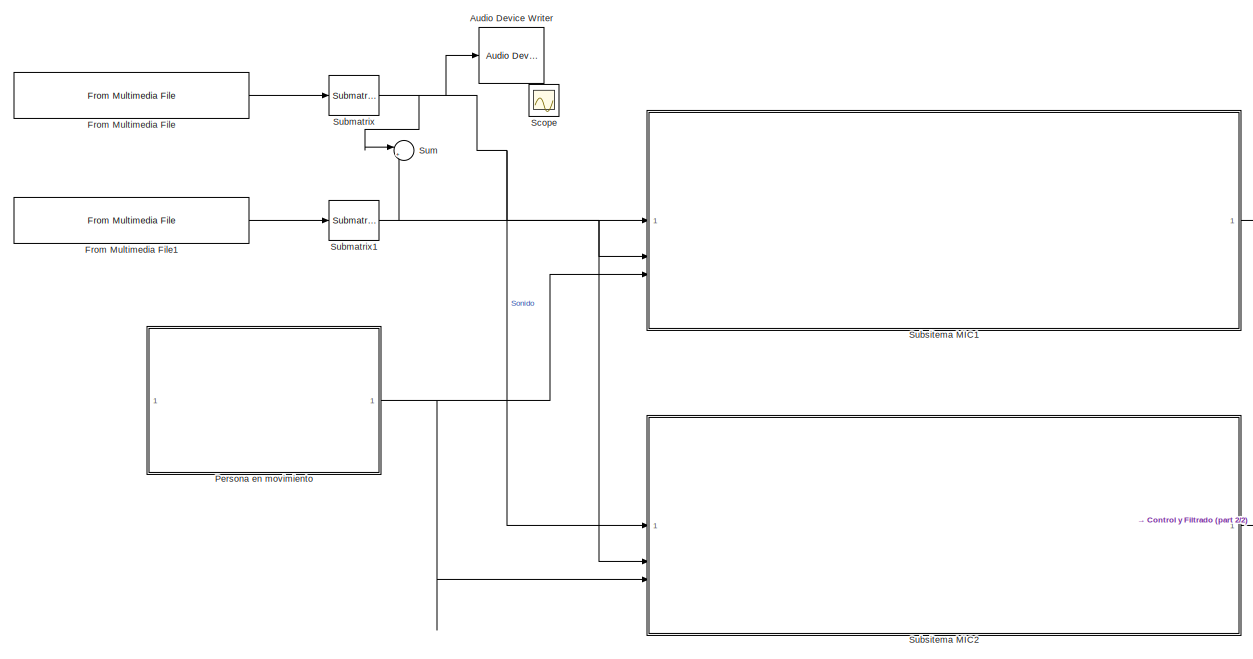
[diagram: root canvas - part 1/2, left side, full height]
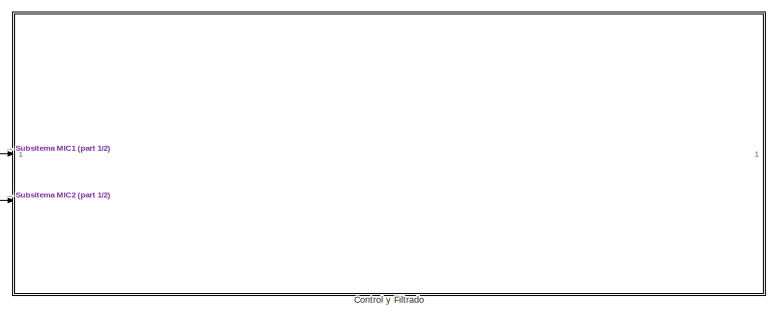
[diagram: root canvas - part 2/2, middle right region]
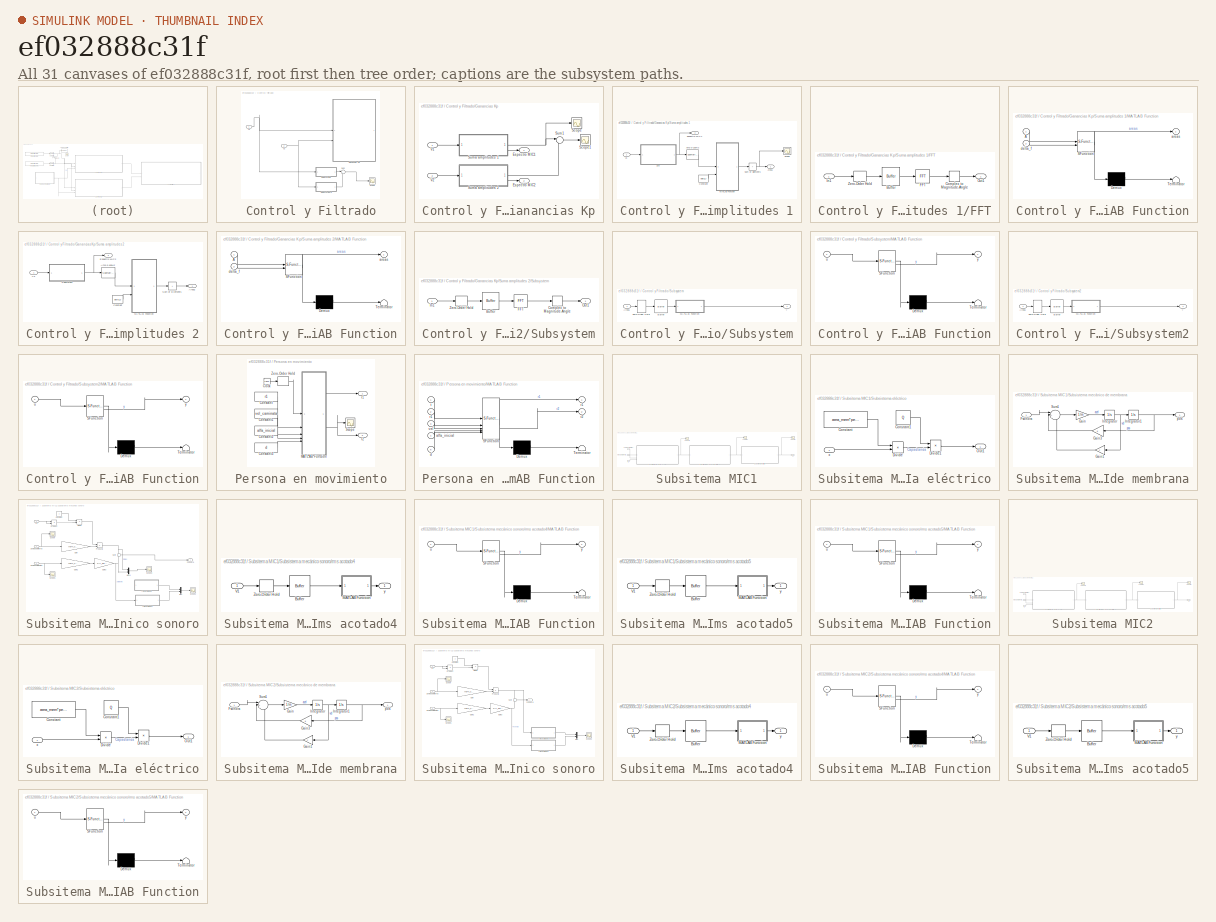
[diagram: thumbnail index - all 31 canvases of the model, root first then tree order]
MODEL slx_ef032888c31f
KIND model
CONFIG AbsTol = auto
CONFIG EnableMultiTasking = off
CONFIG FixedStep = auto
CONFIG MaxStep = auto
CONFIG MinStep = auto
CONFIG RelTol = 1e-3
CONFIG SampleTimeConstraint = Unconstrained
CONFIG SolverName = VariableStepAuto
CONFIG StartTime = 0.0
CONFIG StopTime = 10.0
BLOCK [Reference] Audio Device Writer  REF=dspsnks4/Audio Device
Writer
  LibrarySourceBlock = audiosinks/Audio Device\nWriter
  SourceBlock = dspsnks4/Audio Device\nWriter
  SourceType = Audio Device Writer
BLOCK [SubSystem] Control y Filtrado
BLOCK [SubSystem] Control y Filtrado/Ganancias Kp
BLOCK [Outport] Control y Filtrado/Ganancias Kp/Espectro MIC1
BLOCK [Outport] Control y Filtrado/Ganancias Kp/Espectro MIC2
  Port = 2
BLOCK [Scope] Control y Filtrado/Ganancias Kp/Scope
  Floating = off
  NumInputPorts = 1
  ScopeSpecificationString = Simulink.scopes.TimeScopeBlockCfg('CurrentConfiguration', extmgr.ConfigurationSet(extmgr.Configuration('Core','General UI',true),extmgr.Configuration('Core','Source UI',true),extmgr.Configuration('Sources','WiredSimulink',true,'DataLoggingVariableName','ScopeData1'),extmgr.Configuration('Visuals','Time Domain',true,'SerializedDisplays',{struct('MinYLimReal','-1656.85877','MaxYLimReal','14911.72891...<+1433ch>
BLOCK [Scope] Control y Filtrado/Ganancias Kp/Scope1
  Floating = off
  NumInputPorts = 1
  ScopeSpecificationString = Simulink.scopes.TimeScopeBlockCfg('CurrentConfiguration', extmgr.ConfigurationSet(extmgr.Configuration('Core','General UI',true),extmgr.Configuration('Core','Source UI',true),extmgr.Configuration('Sources','WiredSimulink',true,'DataLoggingVariableName','ScopeData5'),extmgr.Configuration('Visuals','Time Domain',true,'SerializedDisplays',{struct('MinYLimReal','-378.04965','MaxYLimReal','1163.60434',...<+1429ch>
BLOCK [Sum] Control y Filtrado/Ganancias Kp/Sum1
  Inputs = |-+
BLOCK [SubSystem] Control y Filtrado/Ganancias Kp/Suma amplitudes 1
BLOCK [Reference] Control y Filtrado/Ganancias Kp/Suma amplitudes 1/Amp 0-100Hz  REF=matrix_library/Submatrix
  LibrarySourceBlock = simulink/Matrix\nOperations/Submatrix
  SourceBlock = matrix_library/Submatrix
  SourceType = Submatrix
BLOCK [Outport] Control y Filtrado/Ganancias Kp/Suma amplitudes 1/Area1
BLOCK [Constant] Control y Filtrado/Ganancias Kp/Suma amplitudes 1/Constant
  Value = delta_f
BLOCK [Outport] Control y Filtrado/Ganancias Kp/Suma amplitudes 1/Espectro MIC1
  Port = 2
BLOCK [SubSystem] Control y Filtrado/Ganancias Kp/Suma amplitudes 1/FFT
BLOCK [Buffer] Control y Filtrado/Ganancias Kp/Suma amplitudes 1/FFT/Buffer
  N = ventana_fft
  OutputFrames = off
  V = ventana_fft_analisis-1
BLOCK [ComplexToMagnitudeAngle] Control y Filtrado/Ganancias Kp/Suma amplitudes 1/FFT/Complex to Magnitude-Angle
  Output = Magnitude
BLOCK [Reference] Control y Filtrado/Ganancias Kp/Suma amplitudes 1/FFT/FFT  REF=dspxfrm3/FFT
  SourceBlock = dspxfrm3/FFT
  SourceType = FFT
BLOCK [Inport] Control y Filtrado/Ganancias Kp/Suma amplitudes 1/FFT/In1
BLOCK [Outport] Control y Filtrado/Ganancias Kp/Suma amplitudes 1/FFT/Out1
BLOCK [ZeroOrderHold] Control y Filtrado/Ganancias Kp/Suma amplitudes 1/FFT/Zero-Order Hold
  SampleTime = zoh_freq
BLOCK [SubSystem] Control y Filtrado/Ganancias Kp/Suma amplitudes 1/MATLAB Function
  ErrorFcn = Stateflow.Translate.translate
  LibrarySourceBlock = simulink/User-Defined\nFunctions/MATLAB Function
  PermitHierarchicalResolution = ExplicitOnly
  SFBlockType = MATLAB Function
  TreatAsAtomicUnit = on
BLOCK [Demux] Control y Filtrado/Ganancias Kp/Suma amplitudes 1/MATLAB Function/ Demux 
  Outputs = 1
BLOCK [S-Function] Control y Filtrado/Ganancias Kp/Suma amplitudes 1/MATLAB Function/ SFunction 
  EnableBusSupport = on
  FunctionName = sf_sfun
  PortCounts = [2 2]
  SFcnIsStateOwnerBlock = off
  SFunctionDeploymentMode = off
  Tag = Stateflow S-Function 3
BLOCK [Terminator] Control y Filtrado/Ganancias Kp/Suma amplitudes 1/MATLAB Function/ Terminator 
BLOCK [Inport] Control y Filtrado/Ganancias Kp/Suma amplitudes 1/MATLAB Function/A
BLOCK [Outport] Control y Filtrado/Ganancias Kp/Suma amplitudes 1/MATLAB Function/areas
BLOCK [Inport] Control y Filtrado/Ganancias Kp/Suma amplitudes 1/MATLAB Function/delta_f
  Port = 2
BLOCK [Scope] Control y Filtrado/Ganancias Kp/Suma amplitudes 1/Scope
  Floating = off
  NumInputPorts = 1
  ScopeSpecificationString = Simulink.scopes.TimeScopeBlockCfg('CurrentConfiguration', extmgr.ConfigurationSet(extmgr.Configuration('Core','General UI',true),extmgr.Configuration('Core','Source UI',true),extmgr.Configuration('Sources','WiredSimulink',true,'DataLoggingVariableName','ScopeData6'),extmgr.Configuration('Visuals','Time Domain',true),extmgr.Configuration('Tools','Plot Navigation',true),extmgr.Configuration('Tools',...<+40ch>
BLOCK [Sum] Control y Filtrado/Ganancias Kp/Suma amplitudes 1/Sum of Elements
  IconShape = rectangular
  Inputs = +
BLOCK [Inport] Control y Filtrado/Ganancias Kp/Suma amplitudes 1/V1
BLOCK [SubSystem] Control y Filtrado/Ganancias Kp/Suma amplitudes 2
BLOCK [Reference] Control y Filtrado/Ganancias Kp/Suma amplitudes 2/Amp 0-100Hz  REF=matrix_library/Submatrix
  LibrarySourceBlock = simulink/Matrix\nOperations/Submatrix
  SourceBlock = matrix_library/Submatrix
  SourceType = Submatrix
BLOCK [Outport] Control y Filtrado/Ganancias Kp/Suma amplitudes 2/Area2
BLOCK [Constant] Control y Filtrado/Ganancias Kp/Suma amplitudes 2/Constant
  Value = delta_f
BLOCK [Outport] Control y Filtrado/Ganancias Kp/Suma amplitudes 2/Espectro MIC2
  Port = 2
BLOCK [SubSystem] Control y Filtrado/Ganancias Kp/Suma amplitudes 2/MATLAB Function
  ErrorFcn = Stateflow.Translate.translate
  LibrarySourceBlock = simulink/User-Defined\nFunctions/MATLAB Function
  PermitHierarchicalResolution = ExplicitOnly
  SFBlockType = MATLAB Function
  TreatAsAtomicUnit = on
BLOCK [Demux] Control y Filtrado/Ganancias Kp/Suma amplitudes 2/MATLAB Function/ Demux 
  Outputs = 1
BLOCK [S-Function] Control y Filtrado/Ganancias Kp/Suma amplitudes 2/MATLAB Function/ SFunction 
  EnableBusSupport = on
  FunctionName = sf_sfun
  PortCounts = [2 2]
  SFcnIsStateOwnerBlock = off
  SFunctionDeploymentMode = off
  Tag = Stateflow S-Function 2
BLOCK [Terminator] Control y Filtrado/Ganancias Kp/Suma amplitudes 2/MATLAB Function/ Terminator 
BLOCK [Inport] Control y Filtrado/Ganancias Kp/Suma amplitudes 2/MATLAB Function/A
BLOCK [Outport] Control y Filtrado/Ganancias Kp/Suma amplitudes 2/MATLAB Function/areas
BLOCK [Inport] Control y Filtrado/Ganancias Kp/Suma amplitudes 2/MATLAB Function/delta_f
  Port = 2
BLOCK [SubSystem] Control y Filtrado/Ganancias Kp/Suma amplitudes 2/Subsystem
BLOCK [Buffer] Control y Filtrado/Ganancias Kp/Suma amplitudes 2/Subsystem/Buffer
  N = ventana_fft
  OutputFrames = off
  V = ventana_fft_analisis-1
BLOCK [ComplexToMagnitudeAngle] Control y Filtrado/Ganancias Kp/Suma amplitudes 2/Subsystem/Complex to Magnitude-Angle
  Output = Magnitude
BLOCK [Reference] Control y Filtrado/Ganancias Kp/Suma amplitudes 2/Subsystem/FFT  REF=dspxfrm3/FFT
  SourceBlock = dspxfrm3/FFT
  SourceType = FFT
BLOCK [Inport] Control y Filtrado/Ganancias Kp/Suma amplitudes 2/Subsystem/In1
BLOCK [Outport] Control y Filtrado/Ganancias Kp/Suma amplitudes 2/Subsystem/Out1
BLOCK [ZeroOrderHold] Control y Filtrado/Ganancias Kp/Suma amplitudes 2/Subsystem/Zero-Order Hold
  SampleTime = zoh_freq
BLOCK [Sum] Control y Filtrado/Ganancias Kp/Suma amplitudes 2/Sum of Elements
  IconShape = rectangular
  Inputs = +
BLOCK [Inport] Control y Filtrado/Ganancias Kp/Suma amplitudes 2/V2
BLOCK [Inport] Control y Filtrado/Ganancias Kp/V1
BLOCK [Inport] Control y Filtrado/Ganancias Kp/V2
  Port = 2
BLOCK [Scope] Control y Filtrado/Scope
  Floating = off
  NumInputPorts = 1
  ScopeSpecificationString = Simulink.scopes.TimeScopeBlockCfg('CurrentConfiguration', extmgr.ConfigurationSet(extmgr.Configuration('Core','General UI',true),extmgr.Configuration('Core','Source UI',true),extmgr.Configuration('Sources','WiredSimulink',true,'DataLoggingVariableName','ScopeData2'),extmgr.Configuration('Visuals','Time Domain',true,'SerializedDisplays',{struct('MinYLimReal','-1.00000','MaxYLimReal','1.00000','YLab...<+1391ch>
BLOCK [SubSystem] Control y Filtrado/Subsystem
BLOCK [Inport] Control y Filtrado/Subsystem/Area1
BLOCK [Buffer] Control y Filtrado/Subsystem/Buffer
  N = 3
  OutputFrames = off
BLOCK [SubSystem] Control y Filtrado/Subsystem/MATLAB Function
  ErrorFcn = Stateflow.Translate.translate
  LibrarySourceBlock = simulink/User-Defined\nFunctions/MATLAB Function
  PermitHierarchicalResolution = ExplicitOnly
  SFBlockType = MATLAB Function
  TreatAsAtomicUnit = on
BLOCK [Demux] Control y Filtrado/Subsystem/MATLAB Function/ Demux 
  Outputs = 1
BLOCK [S-Function] Control y Filtrado/Subsystem/MATLAB Function/ SFunction 
  EnableBusSupport = on
  FunctionName = sf_sfun
  PortCounts = [1 2]
  SFcnIsStateOwnerBlock = off
  SFunctionDeploymentMode = off
  Tag = Stateflow S-Function 10
BLOCK [Terminator] Control y Filtrado/Subsystem/MATLAB Function/ Terminator 
BLOCK [Inport] Control y Filtrado/Subsystem/MATLAB Function/u
BLOCK [Outport] Control y Filtrado/Subsystem/MATLAB Function/y
BLOCK [ZeroOrderHold] Control y Filtrado/Subsystem/Zero-Order Hold
  SampleTime = 1/fs
BLOCK [Outport] Control y Filtrado/Subsystem/y
BLOCK [SubSystem] Control y Filtrado/Subsystem2
BLOCK [Inport] Control y Filtrado/Subsystem2/Area1
BLOCK [Buffer] Control y Filtrado/Subsystem2/Buffer
  N = 3
  OutputFrames = off
BLOCK [SubSystem] Control y Filtrado/Subsystem2/MATLAB Function
  ErrorFcn = Stateflow.Translate.translate
  LibrarySourceBlock = simulink/User-Defined\nFunctions/MATLAB Function
  PermitHierarchicalResolution = ExplicitOnly
  SFBlockType = MATLAB Function
  TreatAsAtomicUnit = on
BLOCK [Demux] Control y Filtrado/Subsystem2/MATLAB Function/ Demux 
  Outputs = 1
BLOCK [S-Function] Control y Filtrado/Subsystem2/MATLAB Function/ SFunction 
  EnableBusSupport = on
  FunctionName = sf_sfun
  PortCounts = [1 2]
  SFcnIsStateOwnerBlock = off
  SFunctionDeploymentMode = off
  Tag = Stateflow S-Function 12
BLOCK [Terminator] Control y Filtrado/Subsystem2/MATLAB Function/ Terminator 
BLOCK [Inport] Control y Filtrado/Subsystem2/MATLAB Function/u
BLOCK [Outport] Control y Filtrado/Subsystem2/MATLAB Function/y
BLOCK [ZeroOrderHold] Control y Filtrado/Subsystem2/Zero-Order Hold
  SampleTime = 1/fs
BLOCK [Outport] Control y Filtrado/Subsystem2/y
BLOCK [Sum] Control y Filtrado/Sum
  Inputs = |+-
BLOCK [Inport] Control y Filtrado/V1
BLOCK [Inport] Control y Filtrado/V2
  Port = 2
BLOCK [Reference] From Multimedia File  REF=dspvision/From Multimedia File
  LibrarySourceBlock = audiosources/From Multimedia File
  SourceBlock = dspvision/From Multimedia File
  SourceType = From Multimedia File
BLOCK [Reference] From Multimedia File1  REF=dspvision/From Multimedia File
  LibrarySourceBlock = audiosources/From Multimedia File
  SourceBlock = dspvision/From Multimedia File
  SourceType = From Multimedia File
BLOCK [SubSystem] Persona en movimiento
BLOCK [Clock] Persona en movimiento/Clock
  Decimation = 1
BLOCK [Constant] Persona en movimiento/Constant
  Value = r1
BLOCK [Constant] Persona en movimiento/Constant1
  Value = vel_caminata
BLOCK [Constant] Persona en movimiento/Constant2
  Value = alfa_inicial
BLOCK [Constant] Persona en movimiento/Constant3
  Value = d
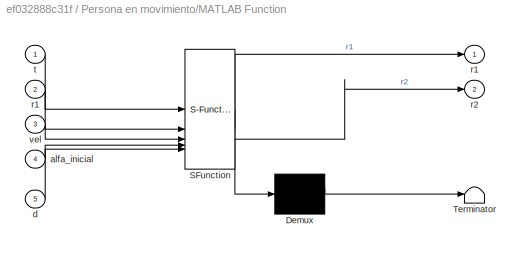
BLOCK [SubSystem] Persona en movimiento/MATLAB Function
  ErrorFcn = Stateflow.Translate.translate
  LibrarySourceBlock = simulink/User-Defined\nFunctions/MATLAB Function
  PermitHierarchicalResolution = ExplicitOnly
  SFBlockType = MATLAB Function
  TreatAsAtomicUnit = on
BLOCK [Demux] Persona en movimiento/MATLAB Function/ Demux 
  Outputs = 1
BLOCK [S-Function] Persona en movimiento/MATLAB Function/ SFunction 
  EnableBusSupport = on
  FunctionName = sf_sfun
  PortCounts = [5 3]
  SFcnIsStateOwnerBlock = off
  SFunctionDeploymentMode = off
  Tag = Stateflow S-Function 5
BLOCK [Terminator] Persona en movimiento/MATLAB Function/ Terminator 
BLOCK [Inport] Persona en movimiento/MATLAB Function/alfa_inicial
  Port = 4
BLOCK [Inport] Persona en movimiento/MATLAB Function/d
  Port = 5
BLOCK [Outport] Persona en movimiento/MATLAB Function/r1
BLOCK [Inport] Persona en movimiento/MATLAB Function/r1 
  Port = 2
BLOCK [Outport] Persona en movimiento/MATLAB Function/r2
  Port = 2
BLOCK [Inport] Persona en movimiento/MATLAB Function/t
BLOCK [Inport] Persona en movimiento/MATLAB Function/vel
  Port = 3
BLOCK [Scope] Persona en movimiento/Scope
  Floating = off
  NumInputPorts = 1
  ScopeSpecificationString = Simulink.scopes.TimeScopeBlockCfg('CurrentConfiguration', extmgr.ConfigurationSet(extmgr.Configuration('Core','General UI',true),extmgr.Configuration('Core','Source UI',true),extmgr.Configuration('Sources','WiredSimulink',true,'DataLoggingVariableName','ScopeData3'),extmgr.Configuration('Visuals','Time Domain',true,'SerializedDisplays',{struct('MinYLimReal','0.41007','MaxYLimReal','0.60999','YLabe...<+1408ch>
BLOCK [ZeroOrderHold] Persona en movimiento/Zero-Order Hold
  SampleTime = 0.1
BLOCK [Outport] Persona en movimiento/r1
BLOCK [Outport] Persona en movimiento/r2
  Port = 2
BLOCK [Scope] Scope
  Floating = off
  NumInputPorts = 1
  ScopeSpecificationString = Simulink.scopes.TimeScopeBlockCfg('CurrentConfiguration', extmgr.ConfigurationSet(extmgr.Configuration('Core','General UI',true),extmgr.Configuration('Core','Source UI',true),extmgr.Configuration('Sources','WiredSimulink',true,'DataLoggingVariableName','ScopeData4'),extmgr.Configuration('Visuals','Time Domain',true,'SerializedDisplays',{struct('MinYLimReal','-1.00000','MaxYLimReal','1.00000','YLab...<+1403ch>
BLOCK [Reference] Submatrix  REF=matrix_library/Submatrix
  LibrarySourceBlock = simulink/Matrix\nOperations/Submatrix
  SourceBlock = matrix_library/Submatrix
  SourceType = Submatrix
BLOCK [Reference] Submatrix1  REF=matrix_library/Submatrix
  LibrarySourceBlock = simulink/Matrix\nOperations/Submatrix
  SourceBlock = matrix_library/Submatrix
  SourceType = Submatrix
BLOCK [SubSystem] Subsitema MIC1
BLOCK [Scope] Subsitema MIC1/Fsonora
  Floating = off
  NumInputPorts = 1
  ScopeSpecificationString = Simulink.scopes.TimeScopeBlockCfg('CurrentConfiguration', extmgr.ConfigurationSet(extmgr.Configuration('Core','General UI',true),extmgr.Configuration('Core','Source UI',true),extmgr.Configuration('Sources','WiredSimulink',true),extmgr.Configuration('Visuals','Time Domain',true,'SerializedDisplays',{struct('MinYLimReal','-0.00023','MaxYLimReal','0.0003','YLabelReal','','MinYLimMag','0.00000','MaxYL...<+1397ch>
BLOCK [Scope] Subsitema MIC1/Posición
  Floating = off
  NumInputPorts = 1
  ScopeSpecificationString = Simulink.scopes.TimeScopeBlockCfg('CurrentConfiguration', extmgr.ConfigurationSet(extmgr.Configuration('Core','General UI',true),extmgr.Configuration('Core','Source UI',true),extmgr.Configuration('Sources','WiredSimulink',true,'DataLoggingVariableName','ScopeData3'),extmgr.Configuration('Visuals','Time Domain',true,'SerializedDisplays',{struct('MinYLimReal','-0.000011','MaxYLimReal','0.000011','YL...<+1398ch>
BLOCK [Inport] Subsitema MIC1/Sonido ambiente 1
  Port = 2
BLOCK [Inport] Subsitema MIC1/Sonido de interes
BLOCK [SubSystem] Subsitema MIC1/Subsistema eléctrico
BLOCK [Constant] Subsitema MIC1/Subsistema eléctrico/Constant
  Value = area_mem*perm
BLOCK [Constant] Subsitema MIC1/Subsistema eléctrico/Constant1
  Value = Q
BLOCK [Product] Subsitema MIC1/Subsistema eléctrico/Divide
  Inputs = */
BLOCK [Product] Subsitema MIC1/Subsistema eléctrico/Divide1
  Inputs = */
BLOCK [Outport] Subsitema MIC1/Subsistema eléctrico/Out1
BLOCK [Inport] Subsitema MIC1/Subsistema eléctrico/x
BLOCK [SubSystem] Subsitema MIC1/Subsistema mecánico de membrana
BLOCK [Inport] Subsitema MIC1/Subsistema mecánico de membrana/Fsonora
BLOCK [Gain] Subsitema MIC1/Subsistema mecánico de membrana/Gain
  Gain = 1/m
BLOCK [Gain] Subsitema MIC1/Subsistema mecánico de membrana/Gain1
  Gain = c
BLOCK [Gain] Subsitema MIC1/Subsistema mecánico de membrana/Gain3
  Gain = k
BLOCK [Integrator] Subsitema MIC1/Subsistema mecánico de membrana/Integrator
BLOCK [Integrator] Subsitema MIC1/Subsistema mecánico de membrana/Integrator1
BLOCK [Sum] Subsitema MIC1/Subsistema mecánico de membrana/Sum1
  Inputs = |+--
BLOCK [Outport] Subsitema MIC1/Subsistema mecánico de membrana/pos
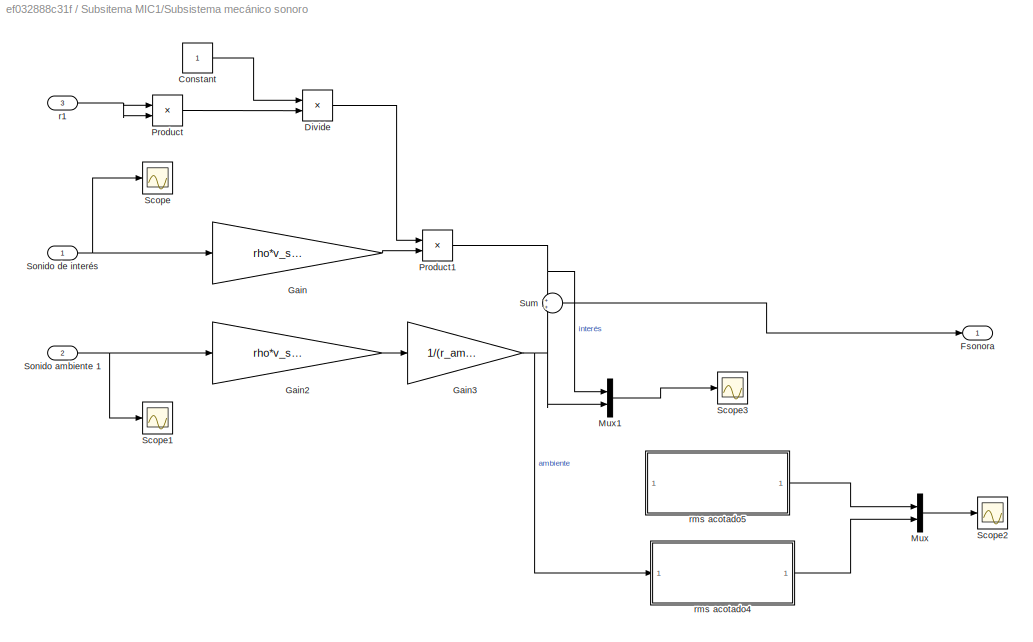
BLOCK [SubSystem] Subsitema MIC1/Subsistema mecánico sonoro
BLOCK [Constant] Subsitema MIC1/Subsistema mecánico sonoro/Constant
BLOCK [Product] Subsitema MIC1/Subsistema mecánico sonoro/Divide
  Inputs = */
BLOCK [Outport] Subsitema MIC1/Subsistema mecánico sonoro/Fsonora
BLOCK [Gain] Subsitema MIC1/Subsistema mecánico sonoro/Gain
  Gain = rho*v_sonido*(area_mem)
BLOCK [Gain] Subsitema MIC1/Subsistema mecánico sonoro/Gain2
  Gain = rho*v_sonido*(area_mem)
BLOCK [Gain] Subsitema MIC1/Subsistema mecánico sonoro/Gain3
  Gain = 1/(r_ambiente1^2)
BLOCK [Mux] Subsitema MIC1/Subsistema mecánico sonoro/Mux
  DisplayOption = bar
  Inputs = 2
BLOCK [Mux] Subsitema MIC1/Subsistema mecánico sonoro/Mux1
  DisplayOption = bar
  Inputs = 2
BLOCK [Product] Subsitema MIC1/Subsistema mecánico sonoro/Product
BLOCK [Product] Subsitema MIC1/Subsistema mecánico sonoro/Product1
BLOCK [Scope] Subsitema MIC1/Subsistema mecánico sonoro/Scope
  Floating = off
  NumInputPorts = 1
  ScopeSpecificationString = Simulink.scopes.TimeScopeBlockCfg('CurrentConfiguration', extmgr.ConfigurationSet(extmgr.Configuration('Core','General UI',true),extmgr.Configuration('Core','Source UI',true),extmgr.Configuration('Sources','WiredSimulink',true,'DataLoggingVariableName','ScopeData1'),extmgr.Configuration('Visuals','Time Domain',true,'SerializedDisplays',{struct('MinYLimReal','-0.27585','MaxYLimReal','0.3576','YLabe...<+1372ch>
BLOCK [Scope] Subsitema MIC1/Subsistema mecánico sonoro/Scope1
  Floating = off
  NumInputPorts = 1
  ScopeSpecificationString = Simulink.scopes.TimeScopeBlockCfg('CurrentConfiguration', extmgr.ConfigurationSet(extmgr.Configuration('Core','General UI',true),extmgr.Configuration('Core','Source UI',true),extmgr.Configuration('Sources','WiredSimulink',true,'DataLoggingVariableName','ScopeData2'),extmgr.Configuration('Visuals','Time Domain',true,'SerializedDisplays',{struct('MinYLimReal','-0.16318','MaxYLimReal','0.17554','YLab...<+1376ch>
BLOCK [Scope] Subsitema MIC1/Subsistema mecánico sonoro/Scope2
  Floating = off
  NumInputPorts = 1
  ScopeSpecificationString = Simulink.scopes.TimeScopeBlockCfg('CurrentConfiguration', extmgr.ConfigurationSet(extmgr.Configuration('Core','General UI',true),extmgr.Configuration('Core','Source UI',true),extmgr.Configuration('Sources','WiredSimulink',true,'DataLoggingVariableName','ScopeData2'),extmgr.Configuration('Visuals','Time Domain',true,'SerializedDisplays',{struct('MinYLimReal','-0.00006','MaxYLimReal','0.00056','YLab...<+1416ch>
BLOCK [Scope] Subsitema MIC1/Subsistema mecánico sonoro/Scope3
  Floating = off
  NumInputPorts = 1
  ScopeSpecificationString = Simulink.scopes.TimeScopeBlockCfg('CurrentConfiguration', extmgr.ConfigurationSet(extmgr.Configuration('Core','General UI',true),extmgr.Configuration('Core','Source UI',true),extmgr.Configuration('Sources','WiredSimulink',true,'DataLoggingVariableName','ScopeData1'),extmgr.Configuration('Visuals','Time Domain',true,'SerializedDisplays',{struct('MinYLimReal','-0.01473','MaxYLimReal','0.01257','YLab...<+1469ch>
BLOCK [Inport] Subsitema MIC1/Subsistema mecánico sonoro/Sonido ambiente 1
  Port = 2
BLOCK [Inport] Subsitema MIC1/Subsistema mecánico sonoro/Sonido de interés
BLOCK [Sum] Subsitema MIC1/Subsistema mecánico sonoro/Sum
BLOCK [Inport] Subsitema MIC1/Subsistema mecánico sonoro/r1
  Port = 3
BLOCK [SubSystem] Subsitema MIC1/Subsistema mecánico sonoro/rms acotado4
BLOCK [Buffer] Subsitema MIC1/Subsistema mecánico sonoro/rms acotado4/Buffer
  N = 20
  OutputFrames = off
BLOCK [SubSystem] Subsitema MIC1/Subsistema mecánico sonoro/rms acotado4/MATLAB Function
  ErrorFcn = Stateflow.Translate.translate
  LibrarySourceBlock = simulink/User-Defined\nFunctions/MATLAB Function
  PermitHierarchicalResolution = ExplicitOnly
  SFBlockType = MATLAB Function
  TreatAsAtomicUnit = on
BLOCK [Demux] Subsitema MIC1/Subsistema mecánico sonoro/rms acotado4/MATLAB Function/ Demux 
  Outputs = 1
BLOCK [S-Function] Subsitema MIC1/Subsistema mecánico sonoro/rms acotado4/MATLAB Function/ SFunction 
  EnableBusSupport = on
  FunctionName = sf_sfun
  PortCounts = [1 2]
  SFcnIsStateOwnerBlock = off
  SFunctionDeploymentMode = off
  Tag = Stateflow S-Function 7
BLOCK [Terminator] Subsitema MIC1/Subsistema mecánico sonoro/rms acotado4/MATLAB Function/ Terminator 
BLOCK [Inport] Subsitema MIC1/Subsistema mecánico sonoro/rms acotado4/MATLAB Function/u
BLOCK [Outport] Subsitema MIC1/Subsistema mecánico sonoro/rms acotado4/MATLAB Function/y
BLOCK [Inport] Subsitema MIC1/Subsistema mecánico sonoro/rms acotado4/V1
BLOCK [ZeroOrderHold] Subsitema MIC1/Subsistema mecánico sonoro/rms acotado4/Zero-Order Hold
  SampleTime = zoh_freq
BLOCK [Outport] Subsitema MIC1/Subsistema mecánico sonoro/rms acotado4/y
BLOCK [SubSystem] Subsitema MIC1/Subsistema mecánico sonoro/rms acotado5
BLOCK [Buffer] Subsitema MIC1/Subsistema mecánico sonoro/rms acotado5/Buffer
  N = 20
  OutputFrames = off
BLOCK [SubSystem] Subsitema MIC1/Subsistema mecánico sonoro/rms acotado5/MATLAB Function
  ErrorFcn = Stateflow.Translate.translate
  LibrarySourceBlock = simulink/User-Defined\nFunctions/MATLAB Function
  PermitHierarchicalResolution = ExplicitOnly
  SFBlockType = MATLAB Function
  TreatAsAtomicUnit = on
BLOCK [Demux] Subsitema MIC1/Subsistema mecánico sonoro/rms acotado5/MATLAB Function/ Demux 
  Outputs = 1
BLOCK [S-Function] Subsitema MIC1/Subsistema mecánico sonoro/rms acotado5/MATLAB Function/ SFunction 
  EnableBusSupport = on
  FunctionName = sf_sfun
  PortCounts = [1 2]
  SFcnIsStateOwnerBlock = off
  SFunctionDeploymentMode = off
  Tag = Stateflow S-Function 8
BLOCK [Terminator] Subsitema MIC1/Subsistema mecánico sonoro/rms acotado5/MATLAB Function/ Terminator 
BLOCK [Inport] Subsitema MIC1/Subsistema mecánico sonoro/rms acotado5/MATLAB Function/u
BLOCK [Outport] Subsitema MIC1/Subsistema mecánico sonoro/rms acotado5/MATLAB Function/y
BLOCK [Inport] Subsitema MIC1/Subsistema mecánico sonoro/rms acotado5/V1
BLOCK [ZeroOrderHold] Subsitema MIC1/Subsistema mecánico sonoro/rms acotado5/Zero-Order Hold
  SampleTime = zoh_freq
BLOCK [Outport] Subsitema MIC1/Subsistema mecánico sonoro/rms acotado5/y
BLOCK [Scope] Subsitema MIC1/Tensión
  Floating = off
  NumInputPorts = 1
  ScopeSpecificationString = Simulink.scopes.TimeScopeBlockCfg('CurrentConfiguration', extmgr.ConfigurationSet(extmgr.Configuration('Core','General UI',true),extmgr.Configuration('Core','Source UI',true),extmgr.Configuration('Sources','WiredSimulink',true,'DataLoggingVariableName','ScopeData1'),extmgr.Configuration('Visuals','Time Domain',true,'SerializedDisplays',{struct('MinYLimReal','-2.47683','MaxYLimReal','2.43758','YLab...<+1379ch>
BLOCK [Outport] Subsitema MIC1/V1
BLOCK [Inport] Subsitema MIC1/r1
  Port = 3
BLOCK [SubSystem] Subsitema MIC2
BLOCK [Scope] Subsitema MIC2/Fsonora
  Floating = off
  NumInputPorts = 1
  ScopeSpecificationString = Simulink.scopes.TimeScopeBlockCfg('CurrentConfiguration', extmgr.ConfigurationSet(extmgr.Configuration('Core','General UI',true),extmgr.Configuration('Core','Source UI',true),extmgr.Configuration('Sources','WiredSimulink',true),extmgr.Configuration('Visuals','Time Domain',true,'SerializedDisplays',{struct('MinYLimReal','-0.00023','MaxYLimReal','0.0003','YLabelReal','','MinYLimMag','0.00000','MaxYL...<+1397ch>
BLOCK [Scope] Subsitema MIC2/Posición
  Floating = off
  NumInputPorts = 1
  ScopeSpecificationString = Simulink.scopes.TimeScopeBlockCfg('CurrentConfiguration', extmgr.ConfigurationSet(extmgr.Configuration('Core','General UI',true),extmgr.Configuration('Core','Source UI',true),extmgr.Configuration('Sources','WiredSimulink',true,'DataLoggingVariableName','ScopeData3'),extmgr.Configuration('Visuals','Time Domain',true,'SerializedDisplays',{struct('MinYLimReal','-0.000011','MaxYLimReal','0.000011','YL...<+1398ch>
BLOCK [Inport] Subsitema MIC2/Sonido ambiente 1
  Port = 2
BLOCK [Inport] Subsitema MIC2/Sonido de interes
BLOCK [SubSystem] Subsitema MIC2/Subsistema eléctrico
BLOCK [Constant] Subsitema MIC2/Subsistema eléctrico/Constant
  Value = area_mem*perm
BLOCK [Constant] Subsitema MIC2/Subsistema eléctrico/Constant1
  Value = Q
BLOCK [Product] Subsitema MIC2/Subsistema eléctrico/Divide
  Inputs = */
BLOCK [Product] Subsitema MIC2/Subsistema eléctrico/Divide1
  Inputs = */
BLOCK [Outport] Subsitema MIC2/Subsistema eléctrico/Out1
BLOCK [Inport] Subsitema MIC2/Subsistema eléctrico/x
BLOCK [SubSystem] Subsitema MIC2/Subsistema mecánico de membrana
BLOCK [Inport] Subsitema MIC2/Subsistema mecánico de membrana/Fsonora
BLOCK [Gain] Subsitema MIC2/Subsistema mecánico de membrana/Gain
  Gain = 1/m
BLOCK [Gain] Subsitema MIC2/Subsistema mecánico de membrana/Gain1
  Gain = c
BLOCK [Gain] Subsitema MIC2/Subsistema mecánico de membrana/Gain3
  Gain = k
BLOCK [Integrator] Subsitema MIC2/Subsistema mecánico de membrana/Integrator
BLOCK [Integrator] Subsitema MIC2/Subsistema mecánico de membrana/Integrator1
BLOCK [Sum] Subsitema MIC2/Subsistema mecánico de membrana/Sum1
  Inputs = |+--
BLOCK [Outport] Subsitema MIC2/Subsistema mecánico de membrana/pos
BLOCK [SubSystem] Subsitema MIC2/Subsistema mecánico sonoro
BLOCK [Constant] Subsitema MIC2/Subsistema mecánico sonoro/Constant
BLOCK [Product] Subsitema MIC2/Subsistema mecánico sonoro/Divide
  Inputs = */
BLOCK [Outport] Subsitema MIC2/Subsistema mecánico sonoro/Fsonora
BLOCK [Gain] Subsitema MIC2/Subsistema mecánico sonoro/Gain
  Gain = rho*v_sonido*(area_mem)
BLOCK [Gain] Subsitema MIC2/Subsistema mecánico sonoro/Gain2
  Gain = rho*v_sonido*(area_mem)
BLOCK [Gain] Subsitema MIC2/Subsistema mecánico sonoro/Gain3
  Gain = 1/(r_ambiente2^2)
BLOCK [Mux] Subsitema MIC2/Subsistema mecánico sonoro/Mux
  DisplayOption = bar
  Inputs = 2
BLOCK [Product] Subsitema MIC2/Subsistema mecánico sonoro/Product
BLOCK [Product] Subsitema MIC2/Subsistema mecánico sonoro/Product1
BLOCK [Scope] Subsitema MIC2/Subsistema mecánico sonoro/Scope
  Floating = off
  NumInputPorts = 1
  ScopeSpecificationString = Simulink.scopes.TimeScopeBlockCfg('CurrentConfiguration', extmgr.ConfigurationSet(extmgr.Configuration('Core','General UI',true),extmgr.Configuration('Core','Source UI',true),extmgr.Configuration('Sources','WiredSimulink',true,'DataLoggingVariableName','ScopeData1'),extmgr.Configuration('Visuals','Time Domain',true,'SerializedDisplays',{struct('MinYLimReal','-0.27585','MaxYLimReal','0.3576','YLabe...<+1372ch>
BLOCK [Scope] Subsitema MIC2/Subsistema mecánico sonoro/Scope1
  Floating = off
  NumInputPorts = 1
  ScopeSpecificationString = Simulink.scopes.TimeScopeBlockCfg('CurrentConfiguration', extmgr.ConfigurationSet(extmgr.Configuration('Core','General UI',true),extmgr.Configuration('Core','Source UI',true),extmgr.Configuration('Sources','WiredSimulink',true,'DataLoggingVariableName','ScopeData2'),extmgr.Configuration('Visuals','Time Domain',true),extmgr.Configuration('Tools','Plot Navigation',true),extmgr.Configuration('Tools',...<+40ch>
BLOCK [Scope] Subsitema MIC2/Subsistema mecánico sonoro/Scope2
  Floating = off
  NumInputPorts = 1
  ScopeSpecificationString = Simulink.scopes.TimeScopeBlockCfg('CurrentConfiguration', extmgr.ConfigurationSet(extmgr.Configuration('Core','General UI',true),extmgr.Configuration('Core','Source UI',true),extmgr.Configuration('Sources','WiredSimulink',true,'DataLoggingVariableName','ScopeData2'),extmgr.Configuration('Visuals','Time Domain',true,'SerializedDisplays',{struct('MinYLimReal','-0.0000002','MaxYLimReal','0.0000014','...<+1432ch>
BLOCK [Inport] Subsitema MIC2/Subsistema mecánico sonoro/Sonido ambiente 1
  Port = 2
BLOCK [Inport] Subsitema MIC2/Subsistema mecánico sonoro/Sonido de interés
BLOCK [Sum] Subsitema MIC2/Subsistema mecánico sonoro/Sum
BLOCK [Inport] Subsitema MIC2/Subsistema mecánico sonoro/r1
  Port = 3
BLOCK [SubSystem] Subsitema MIC2/Subsistema mecánico sonoro/rms acotado4
BLOCK [Buffer] Subsitema MIC2/Subsistema mecánico sonoro/rms acotado4/Buffer
  N = 20
  OutputFrames = off
BLOCK [SubSystem] Subsitema MIC2/Subsistema mecánico sonoro/rms acotado4/MATLAB Function
  ErrorFcn = Stateflow.Translate.translate
  LibrarySourceBlock = simulink/User-Defined\nFunctions/MATLAB Function
  PermitHierarchicalResolution = ExplicitOnly
  SFBlockType = MATLAB Function
  TreatAsAtomicUnit = on
BLOCK [Demux] Subsitema MIC2/Subsistema mecánico sonoro/rms acotado4/MATLAB Function/ Demux 
  Outputs = 1
BLOCK [S-Function] Subsitema MIC2/Subsistema mecánico sonoro/rms acotado4/MATLAB Function/ SFunction 
  EnableBusSupport = on
  FunctionName = sf_sfun
  PortCounts = [1 2]
  SFcnIsStateOwnerBlock = off
  SFunctionDeploymentMode = off
  Tag = Stateflow S-Function 4
BLOCK [Terminator] Subsitema MIC2/Subsistema mecánico sonoro/rms acotado4/MATLAB Function/ Terminator 
BLOCK [Inport] Subsitema MIC2/Subsistema mecánico sonoro/rms acotado4/MATLAB Function/u
BLOCK [Outport] Subsitema MIC2/Subsistema mecánico sonoro/rms acotado4/MATLAB Function/y
BLOCK [Inport] Subsitema MIC2/Subsistema mecánico sonoro/rms acotado4/V1
BLOCK [ZeroOrderHold] Subsitema MIC2/Subsistema mecánico sonoro/rms acotado4/Zero-Order Hold
  SampleTime = zoh_freq
BLOCK [Outport] Subsitema MIC2/Subsistema mecánico sonoro/rms acotado4/y
BLOCK [SubSystem] Subsitema MIC2/Subsistema mecánico sonoro/rms acotado5
BLOCK [Buffer] Subsitema MIC2/Subsistema mecánico sonoro/rms acotado5/Buffer
  N = 20
  OutputFrames = off
BLOCK [SubSystem] Subsitema MIC2/Subsistema mecánico sonoro/rms acotado5/MATLAB Function
  ErrorFcn = Stateflow.Translate.translate
  LibrarySourceBlock = simulink/User-Defined\nFunctions/MATLAB Function
  PermitHierarchicalResolution = ExplicitOnly
  SFBlockType = MATLAB Function
  TreatAsAtomicUnit = on
BLOCK [Demux] Subsitema MIC2/Subsistema mecánico sonoro/rms acotado5/MATLAB Function/ Demux 
  Outputs = 1
BLOCK [S-Function] Subsitema MIC2/Subsistema mecánico sonoro/rms acotado5/MATLAB Function/ SFunction 
  EnableBusSupport = on
  FunctionName = sf_sfun
  PortCounts = [1 2]
  SFcnIsStateOwnerBlock = off
  SFunctionDeploymentMode = off
  Tag = Stateflow S-Function 6
BLOCK [Terminator] Subsitema MIC2/Subsistema mecánico sonoro/rms acotado5/MATLAB Function/ Terminator 
BLOCK [Inport] Subsitema MIC2/Subsistema mecánico sonoro/rms acotado5/MATLAB Function/u
BLOCK [Outport] Subsitema MIC2/Subsistema mecánico sonoro/rms acotado5/MATLAB Function/y
BLOCK [Inport] Subsitema MIC2/Subsistema mecánico sonoro/rms acotado5/V1
BLOCK [ZeroOrderHold] Subsitema MIC2/Subsistema mecánico sonoro/rms acotado5/Zero-Order Hold
  SampleTime = zoh_freq
BLOCK [Outport] Subsitema MIC2/Subsistema mecánico sonoro/rms acotado5/y
BLOCK [Scope] Subsitema MIC2/Tensión
  Floating = off
  NumInputPorts = 1
  ScopeSpecificationString = Simulink.scopes.TimeScopeBlockCfg('CurrentConfiguration', extmgr.ConfigurationSet(extmgr.Configuration('Core','General UI',true),extmgr.Configuration('Core','Source UI',true),extmgr.Configuration('Sources','WiredSimulink',true,'DataLoggingVariableName','ScopeData1'),extmgr.Configuration('Visuals','Time Domain',true,'SerializedDisplays',{struct('MinYLimReal','-2.47683','MaxYLimReal','2.43758','YLab...<+1379ch>
BLOCK [Outport] Subsitema MIC2/V1
BLOCK [Inport] Subsitema MIC2/r2
  Port = 3
BLOCK [Sum] Sum
  Inputs = |++
LINE Control y Filtrado/Ganancias Kp/Sum1:1 -> Control y Filtrado/Ganancias Kp/Scope1:1
LINE Control y Filtrado/Ganancias Kp/Suma amplitudes 1/Amp 0-100Hz:1 -> Control y Filtrado/Ganancias Kp/Suma amplitudes 1/MATLAB Function:1
LINE Control y Filtrado/Ganancias Kp/Suma amplitudes 1/Constant:1 -> Control y Filtrado/Ganancias Kp/Suma amplitudes 1/MATLAB Function:2
LINE Control y Filtrado/Ganancias Kp/Suma amplitudes 1/FFT/Buffer:1 -> Control y Filtrado/Ganancias Kp/Suma amplitudes 1/FFT/FFT:1
LINE Control y Filtrado/Ganancias Kp/Suma amplitudes 1/FFT/Complex to Magnitude-Angle:1 -> Control y Filtrado/Ganancias Kp/Suma amplitudes 1/FFT/Out1:1
LINE Control y Filtrado/Ganancias Kp/Suma amplitudes 1/FFT/FFT:1 -> Control y Filtrado/Ganancias Kp/Suma amplitudes 1/FFT/Complex to Magnitude-Angle:1
LINE Control y Filtrado/Ganancias Kp/Suma amplitudes 1/FFT/In1:1 -> Control y Filtrado/Ganancias Kp/Suma amplitudes 1/FFT/Zero-Order Hold:1
LINE Control y Filtrado/Ganancias Kp/Suma amplitudes 1/FFT/Zero-Order Hold:1 -> Control y Filtrado/Ganancias Kp/Suma amplitudes 1/FFT/Buffer:1
NET Control y Filtrado/Ganancias Kp/Suma amplitudes 1/FFT:1 -> Control y Filtrado/Ganancias Kp/Suma amplitudes 1/Amp 0-100Hz:1, Control y Filtrado/Ganancias Kp/Suma amplitudes 1/Espectro MIC1:1
LINE Control y Filtrado/Ganancias Kp/Suma amplitudes 1/MATLAB Function:1 -> Control y Filtrado/Ganancias Kp/Suma amplitudes 1/Sum of Elements:1
NET Control y Filtrado/Ganancias Kp/Suma amplitudes 1/Sum of Elements:1 -> Control y Filtrado/Ganancias Kp/Suma amplitudes 1/Area1:1, Control y Filtrado/Ganancias Kp/Suma amplitudes 1/Scope:1
LINE Control y Filtrado/Ganancias Kp/Suma amplitudes 1/V1:1 -> Control y Filtrado/Ganancias Kp/Suma amplitudes 1/FFT:1
NET Control y Filtrado/Ganancias Kp/Suma amplitudes 1:1 -> Control y Filtrado/Ganancias Kp/Scope:1, Control y Filtrado/Ganancias Kp/Sum1:1
LINE Control y Filtrado/Ganancias Kp/Suma amplitudes 1:2 -> Control y Filtrado/Ganancias Kp/Espectro MIC1:1
LINE Control y Filtrado/Ganancias Kp/Suma amplitudes 2/Amp 0-100Hz:1 -> Control y Filtrado/Ganancias Kp/Suma amplitudes 2/MATLAB Function:1
LINE Control y Filtrado/Ganancias Kp/Suma amplitudes 2/Constant:1 -> Control y Filtrado/Ganancias Kp/Suma amplitudes 2/MATLAB Function:2
LINE Control y Filtrado/Ganancias Kp/Suma amplitudes 2/MATLAB Function:1 -> Control y Filtrado/Ganancias Kp/Suma amplitudes 2/Sum of Elements:1
LINE Control y Filtrado/Ganancias Kp/Suma amplitudes 2/Subsystem/Buffer:1 -> Control y Filtrado/Ganancias Kp/Suma amplitudes 2/Subsystem/FFT:1
LINE Control y Filtrado/Ganancias Kp/Suma amplitudes 2/Subsystem/Complex to Magnitude-Angle:1 -> Control y Filtrado/Ganancias Kp/Suma amplitudes 2/Subsystem/Out1:1
LINE Control y Filtrado/Ganancias Kp/Suma amplitudes 2/Subsystem/FFT:1 -> Control y Filtrado/Ganancias Kp/Suma amplitudes 2/Subsystem/Complex to Magnitude-Angle:1
LINE Control y Filtrado/Ganancias Kp/Suma amplitudes 2/Subsystem/In1:1 -> Control y Filtrado/Ganancias Kp/Suma amplitudes 2/Subsystem/Zero-Order Hold:1
LINE Control y Filtrado/Ganancias Kp/Suma amplitudes 2/Subsystem/Zero-Order Hold:1 -> Control y Filtrado/Ganancias Kp/Suma amplitudes 2/Subsystem/Buffer:1
NET Control y Filtrado/Ganancias Kp/Suma amplitudes 2/Subsystem:1 -> Control y Filtrado/Ganancias Kp/Suma amplitudes 2/Amp 0-100Hz:1, Control y Filtrado/Ganancias Kp/Suma amplitudes 2/Espectro MIC2:1
LINE Control y Filtrado/Ganancias Kp/Suma amplitudes 2/Sum of Elements:1 -> Control y Filtrado/Ganancias Kp/Suma amplitudes 2/Area2:1
LINE Control y Filtrado/Ganancias Kp/Suma amplitudes 2/V2:1 -> Control y Filtrado/Ganancias Kp/Suma amplitudes 2/Subsystem:1
LINE Control y Filtrado/Ganancias Kp/Suma amplitudes 2:1 -> Control y Filtrado/Ganancias Kp/Sum1:2
LINE Control y Filtrado/Ganancias Kp/Suma amplitudes 2:2 -> Control y Filtrado/Ganancias Kp/Espectro MIC2:1
LINE Control y Filtrado/Ganancias Kp/V1:1 -> Control y Filtrado/Ganancias Kp/Suma amplitudes 1:1
LINE Control y Filtrado/Ganancias Kp/V2:1 -> Control y Filtrado/Ganancias Kp/Suma amplitudes 2:1
LINE Control y Filtrado/Subsystem/Area1:1 -> Control y Filtrado/Subsystem/Zero-Order Hold:1
LINE Control y Filtrado/Subsystem/Buffer:1 -> Control y Filtrado/Subsystem/MATLAB Function:1
LINE Control y Filtrado/Subsystem/MATLAB Function:1 -> Control y Filtrado/Subsystem/y:1
LINE Control y Filtrado/Subsystem/Zero-Order Hold:1 -> Control y Filtrado/Subsystem/Buffer:1
LINE Control y Filtrado/Subsystem2/Area1:1 -> Control y Filtrado/Subsystem2/Zero-Order Hold:1
LINE Control y Filtrado/Subsystem2/Buffer:1 -> Control y Filtrado/Subsystem2/MATLAB Function:1
LINE Control y Filtrado/Subsystem2/MATLAB Function:1 -> Control y Filtrado/Subsystem2/y:1
LINE Control y Filtrado/Subsystem2/Zero-Order Hold:1 -> Control y Filtrado/Subsystem2/Buffer:1
LINE Control y Filtrado/Subsystem2:1 -> Control y Filtrado/Sum:2
LINE Control y Filtrado/Subsystem:1 -> Control y Filtrado/Sum:1
LINE Control y Filtrado/Sum:1 -> Control y Filtrado/Scope:1
NET Control y Filtrado/V1:1 -> Control y Filtrado/Ganancias Kp:1, Control y Filtrado/Subsystem:1
NET Control y Filtrado/V2:1 -> Control y Filtrado/Ganancias Kp:2, Control y Filtrado/Subsystem2:1
LINE From Multimedia File1:1 -> Submatrix1:1
LINE From Multimedia File:1 -> Submatrix:1
LINE Persona en movimiento/Clock:1 -> Persona en movimiento/Zero-Order Hold:1
LINE Persona en movimiento/Constant1:1 -> Persona en movimiento/MATLAB Function:3
LINE Persona en movimiento/Constant2:1 -> Persona en movimiento/MATLAB Function:4
LINE Persona en movimiento/Constant3:1 -> Persona en movimiento/MATLAB Function:5
LINE Persona en movimiento/Constant:1 -> Persona en movimiento/MATLAB Function:2
LINE Persona en movimiento/MATLAB Function:1 -> Persona en movimiento/r1:1
NET Persona en movimiento/MATLAB Function:2 -> Persona en movimiento/Scope:1, Persona en movimiento/r2:1
LINE Persona en movimiento/Zero-Order Hold:1 -> Persona en movimiento/MATLAB Function:1
NET Persona en movimiento:1 -> Subsitema MIC1:3, Subsitema MIC2:3
NET Submatrix1:1 -> Subsitema MIC1:2, Subsitema MIC2:2, Sum:2
NET Submatrix:1 -> Audio Device Writer:1, Subsitema MIC1:1, Subsitema MIC2:1, Sum:1
LINE Subsitema MIC1/Sonido ambiente 1:1 -> Subsitema MIC1/Subsistema mecánico sonoro:2
LINE Subsitema MIC1/Sonido de interes:1 -> Subsitema MIC1/Subsistema mecánico sonoro:1
LINE Subsitema MIC1/Subsistema eléctrico/Constant1:1 -> Subsitema MIC1/Subsistema eléctrico/Divide1:1
LINE Subsitema MIC1/Subsistema eléctrico/Constant:1 -> Subsitema MIC1/Subsistema eléctrico/Divide:1
LINE Subsitema MIC1/Subsistema eléctrico/Divide1:1 -> Subsitema MIC1/Subsistema eléctrico/Out1:1
LINE Subsitema MIC1/Subsistema eléctrico/Divide:1 -> Subsitema MIC1/Subsistema eléctrico/Divide1:2
LINE Subsitema MIC1/Subsistema eléctrico/x:1 -> Subsitema MIC1/Subsistema eléctrico/Divide:2
NET Subsitema MIC1/Subsistema eléctrico:1 -> Subsitema MIC1/Tensión:1, Subsitema MIC1/V1:1
LINE Subsitema MIC1/Subsistema mecánico de membrana/Fsonora:1 -> Subsitema MIC1/Subsistema mecánico de membrana/Sum1:1
LINE Subsitema MIC1/Subsistema mecánico de membrana/Gain1:1 -> Subsitema MIC1/Subsistema mecánico de membrana/Sum1:3
LINE Subsitema MIC1/Subsistema mecánico de membrana/Gain3:1 -> Subsitema MIC1/Subsistema mecánico de membrana/Sum1:2
LINE Subsitema MIC1/Subsistema mecánico de membrana/Gain:1 -> Subsitema MIC1/Subsistema mecánico de membrana/Integrator:1
NET Subsitema MIC1/Subsistema mecánico de membrana/Integrator1:1 -> Subsitema MIC1/Subsistema mecánico de membrana/Gain3:1, Subsitema MIC1/Subsistema mecánico de membrana/pos:1
NET Subsitema MIC1/Subsistema mecánico de membrana/Integrator:1 -> Subsitema MIC1/Subsistema mecánico de membrana/Gain1:1, Subsitema MIC1/Subsistema mecánico de membrana/Integrator1:1
LINE Subsitema MIC1/Subsistema mecánico de membrana/Sum1:1 -> Subsitema MIC1/Subsistema mecánico de membrana/Gain:1
NET Subsitema MIC1/Subsistema mecánico de membrana:1 -> Subsitema MIC1/Posición:1, Subsitema MIC1/Subsistema eléctrico:1
LINE Subsitema MIC1/Subsistema mecánico sonoro/Constant:1 -> Subsitema MIC1/Subsistema mecánico sonoro/Divide:1
LINE Subsitema MIC1/Subsistema mecánico sonoro/Divide:1 -> Subsitema MIC1/Subsistema mecánico sonoro/Product1:1
LINE Subsitema MIC1/Subsistema mecánico sonoro/Gain2:1 -> Subsitema MIC1/Subsistema mecánico sonoro/Gain3:1
NET Subsitema MIC1/Subsistema mecánico sonoro/Gain3:1 -> Subsitema MIC1/Subsistema mecánico sonoro/Mux1:2, Subsitema MIC1/Subsistema mecánico sonoro/Sum:2, Subsitema MIC1/Subsistema mecánico sonoro/rms acotado4:1
LINE Subsitema MIC1/Subsistema mecánico sonoro/Gain:1 -> Subsitema MIC1/Subsistema mecánico sonoro/Product1:2
LINE Subsitema MIC1/Subsistema mecánico sonoro/Mux1:1 -> Subsitema MIC1/Subsistema mecánico sonoro/Scope3:1
LINE Subsitema MIC1/Subsistema mecánico sonoro/Mux:1 -> Subsitema MIC1/Subsistema mecánico sonoro/Scope2:1
NET Subsitema MIC1/Subsistema mecánico sonoro/Product1:1 -> Subsitema MIC1/Subsistema mecánico sonoro/Mux1:1, Subsitema MIC1/Subsistema mecánico sonoro/Sum:1
LINE Subsitema MIC1/Subsistema mecánico sonoro/Product:1 -> Subsitema MIC1/Subsistema mecánico sonoro/Divide:2
NET Subsitema MIC1/Subsistema mecánico sonoro/Sonido ambiente 1:1 -> Subsitema MIC1/Subsistema mecánico sonoro/Gain2:1, Subsitema MIC1/Subsistema mecánico sonoro/Scope1:1
NET Subsitema MIC1/Subsistema mecánico sonoro/Sonido de interés:1 -> Subsitema MIC1/Subsistema mecánico sonoro/Gain:1, Subsitema MIC1/Subsistema mecánico sonoro/Scope:1
LINE Subsitema MIC1/Subsistema mecánico sonoro/Sum:1 -> Subsitema MIC1/Subsistema mecánico sonoro/Fsonora:1
NET Subsitema MIC1/Subsistema mecánico sonoro/r1:1 -> Subsitema MIC1/Subsistema mecánico sonoro/Product:1, Subsitema MIC1/Subsistema mecánico sonoro/Product:2
LINE Subsitema MIC1/Subsistema mecánico sonoro/rms acotado4/Buffer:1 -> Subsitema MIC1/Subsistema mecánico sonoro/rms acotado4/MATLAB Function:1
LINE Subsitema MIC1/Subsistema mecánico sonoro/rms acotado4/MATLAB Function:1 -> Subsitema MIC1/Subsistema mecánico sonoro/rms acotado4/y:1
LINE Subsitema MIC1/Subsistema mecánico sonoro/rms acotado4/V1:1 -> Subsitema MIC1/Subsistema mecánico sonoro/rms acotado4/Zero-Order Hold:1
LINE Subsitema MIC1/Subsistema mecánico sonoro/rms acotado4/Zero-Order Hold:1 -> Subsitema MIC1/Subsistema mecánico sonoro/rms acotado4/Buffer:1
LINE Subsitema MIC1/Subsistema mecánico sonoro/rms acotado4:1 -> Subsitema MIC1/Subsistema mecánico sonoro/Mux:2
LINE Subsitema MIC1/Subsistema mecánico sonoro/rms acotado5/Buffer:1 -> Subsitema MIC1/Subsistema mecánico sonoro/rms acotado5/MATLAB Function:1
LINE Subsitema MIC1/Subsistema mecánico sonoro/rms acotado5/MATLAB Function:1 -> Subsitema MIC1/Subsistema mecánico sonoro/rms acotado5/y:1
LINE Subsitema MIC1/Subsistema mecánico sonoro/rms acotado5/V1:1 -> Subsitema MIC1/Subsistema mecánico sonoro/rms acotado5/Zero-Order Hold:1
LINE Subsitema MIC1/Subsistema mecánico sonoro/rms acotado5/Zero-Order Hold:1 -> Subsitema MIC1/Subsistema mecánico sonoro/rms acotado5/Buffer:1
LINE Subsitema MIC1/Subsistema mecánico sonoro/rms acotado5:1 -> Subsitema MIC1/Subsistema mecánico sonoro/Mux:1
NET Subsitema MIC1/Subsistema mecánico sonoro:1 -> Subsitema MIC1/Fsonora:1, Subsitema MIC1/Subsistema mecánico de membrana:1
LINE Subsitema MIC1/r1:1 -> Subsitema MIC1/Subsistema mecánico sonoro:3
LINE Subsitema MIC1:1 -> Control y Filtrado:1
LINE Subsitema MIC2/Sonido ambiente 1:1 -> Subsitema MIC2/Subsistema mecánico sonoro:2
LINE Subsitema MIC2/Sonido de interes:1 -> Subsitema MIC2/Subsistema mecánico sonoro:1
LINE Subsitema MIC2/Subsistema eléctrico/Constant1:1 -> Subsitema MIC2/Subsistema eléctrico/Divide1:1
LINE Subsitema MIC2/Subsistema eléctrico/Constant:1 -> Subsitema MIC2/Subsistema eléctrico/Divide:1
LINE Subsitema MIC2/Subsistema eléctrico/Divide1:1 -> Subsitema MIC2/Subsistema eléctrico/Out1:1
LINE Subsitema MIC2/Subsistema eléctrico/Divide:1 -> Subsitema MIC2/Subsistema eléctrico/Divide1:2
LINE Subsitema MIC2/Subsistema eléctrico/x:1 -> Subsitema MIC2/Subsistema eléctrico/Divide:2
NET Subsitema MIC2/Subsistema eléctrico:1 -> Subsitema MIC2/Tensión:1, Subsitema MIC2/V1:1
LINE Subsitema MIC2/Subsistema mecánico de membrana/Fsonora:1 -> Subsitema MIC2/Subsistema mecánico de membrana/Sum1:1
LINE Subsitema MIC2/Subsistema mecánico de membrana/Gain1:1 -> Subsitema MIC2/Subsistema mecánico de membrana/Sum1:3
LINE Subsitema MIC2/Subsistema mecánico de membrana/Gain3:1 -> Subsitema MIC2/Subsistema mecánico de membrana/Sum1:2
LINE Subsitema MIC2/Subsistema mecánico de membrana/Gain:1 -> Subsitema MIC2/Subsistema mecánico de membrana/Integrator:1
NET Subsitema MIC2/Subsistema mecánico de membrana/Integrator1:1 -> Subsitema MIC2/Subsistema mecánico de membrana/Gain3:1, Subsitema MIC2/Subsistema mecánico de membrana/pos:1
NET Subsitema MIC2/Subsistema mecánico de membrana/Integrator:1 -> Subsitema MIC2/Subsistema mecánico de membrana/Gain1:1, Subsitema MIC2/Subsistema mecánico de membrana/Integrator1:1
LINE Subsitema MIC2/Subsistema mecánico de membrana/Sum1:1 -> Subsitema MIC2/Subsistema mecánico de membrana/Gain:1
NET Subsitema MIC2/Subsistema mecánico de membrana:1 -> Subsitema MIC2/Posición:1, Subsitema MIC2/Subsistema eléctrico:1
LINE Subsitema MIC2/Subsistema mecánico sonoro/Constant:1 -> Subsitema MIC2/Subsistema mecánico sonoro/Divide:1
LINE Subsitema MIC2/Subsistema mecánico sonoro/Divide:1 -> Subsitema MIC2/Subsistema mecánico sonoro/Product1:1
LINE Subsitema MIC2/Subsistema mecánico sonoro/Gain2:1 -> Subsitema MIC2/Subsistema mecánico sonoro/Gain3:1
NET Subsitema MIC2/Subsistema mecánico sonoro/Gain3:1 -> Subsitema MIC2/Subsistema mecánico sonoro/Sum:2, Subsitema MIC2/Subsistema mecánico sonoro/rms acotado4:1
LINE Subsitema MIC2/Subsistema mecánico sonoro/Gain:1 -> Subsitema MIC2/Subsistema mecánico sonoro/Product1:2
LINE Subsitema MIC2/Subsistema mecánico sonoro/Mux:1 -> Subsitema MIC2/Subsistema mecánico sonoro/Scope2:1
NET Subsitema MIC2/Subsistema mecánico sonoro/Product1:1 -> Subsitema MIC2/Subsistema mecánico sonoro/Sum:1, Subsitema MIC2/Subsistema mecánico sonoro/rms acotado5:1
LINE Subsitema MIC2/Subsistema mecánico sonoro/Product:1 -> Subsitema MIC2/Subsistema mecánico sonoro/Divide:2
NET Subsitema MIC2/Subsistema mecánico sonoro/Sonido ambiente 1:1 -> Subsitema MIC2/Subsistema mecánico sonoro/Gain2:1, Subsitema MIC2/Subsistema mecánico sonoro/Scope1:1
NET Subsitema MIC2/Subsistema mecánico sonoro/Sonido de interés:1 -> Subsitema MIC2/Subsistema mecánico sonoro/Gain:1, Subsitema MIC2/Subsistema mecánico sonoro/Scope:1
LINE Subsitema MIC2/Subsistema mecánico sonoro/Sum:1 -> Subsitema MIC2/Subsistema mecánico sonoro/Fsonora:1
NET Subsitema MIC2/Subsistema mecánico sonoro/r1:1 -> Subsitema MIC2/Subsistema mecánico sonoro/Product:1, Subsitema MIC2/Subsistema mecánico sonoro/Product:2
LINE Subsitema MIC2/Subsistema mecánico sonoro/rms acotado4/Buffer:1 -> Subsitema MIC2/Subsistema mecánico sonoro/rms acotado4/MATLAB Function:1
LINE Subsitema MIC2/Subsistema mecánico sonoro/rms acotado4/MATLAB Function:1 -> Subsitema MIC2/Subsistema mecánico sonoro/rms acotado4/y:1
LINE Subsitema MIC2/Subsistema mecánico sonoro/rms acotado4/V1:1 -> Subsitema MIC2/Subsistema mecánico sonoro/rms acotado4/Zero-Order Hold:1
LINE Subsitema MIC2/Subsistema mecánico sonoro/rms acotado4/Zero-Order Hold:1 -> Subsitema MIC2/Subsistema mecánico sonoro/rms acotado4/Buffer:1
LINE Subsitema MIC2/Subsistema mecánico sonoro/rms acotado4:1 -> Subsitema MIC2/Subsistema mecánico sonoro/Mux:2
LINE Subsitema MIC2/Subsistema mecánico sonoro/rms acotado5/Buffer:1 -> Subsitema MIC2/Subsistema mecánico sonoro/rms acotado5/MATLAB Function:1
LINE Subsitema MIC2/Subsistema mecánico sonoro/rms acotado5/MATLAB Function:1 -> Subsitema MIC2/Subsistema mecánico sonoro/rms acotado5/y:1
LINE Subsitema MIC2/Subsistema mecánico sonoro/rms acotado5/V1:1 -> Subsitema MIC2/Subsistema mecánico sonoro/rms acotado5/Zero-Order Hold:1
LINE Subsitema MIC2/Subsistema mecánico sonoro/rms acotado5/Zero-Order Hold:1 -> Subsitema MIC2/Subsistema mecánico sonoro/rms acotado5/Buffer:1
LINE Subsitema MIC2/Subsistema mecánico sonoro/rms acotado5:1 -> Subsitema MIC2/Subsistema mecánico sonoro/Mux:1
NET Subsitema MIC2/Subsistema mecánico sonoro:1 -> Subsitema MIC2/Fsonora:1, Subsitema MIC2/Subsistema mecánico de membrana:1
LINE Subsitema MIC2/r2:1 -> Subsitema MIC2/Subsistema mecánico sonoro:3
LINE Subsitema MIC2:1 -> Control y Filtrado:2
note: NET lines group one-source signal fan-out (src -> all destinations, sorted); 1:1 wires keep LINE
CHART Control y Filtrado/Ganancias Kp/Suma amplitudes 2/MATLAB Function states=1 transitions=1
  STATE_LABEL 'eML_blk_kernel()'
  STATE_LABEL 'SCRIPT:\nfunction areas = fcn(A, delta_f)\n\nareas = A.* delta_f;\n'
CHART Control y Filtrado/Ganancias Kp/Suma amplitudes 1/MATLAB Function states=1 transitions=1
  STATE_LABEL 'eML_blk_kernel()'
  STATE_LABEL 'SCRIPT:\nfunction areas = fcn(A, delta_f)\n\nareas = A.* delta_f;\n'
CHART Subsitema MIC2/Subsistema mecánico sonoro/rms acotado4/MATLAB Function states=1 transitions=1
  STATE_LABEL 'eML_blk_kernel()'
  STATE_LABEL 'SCRIPT:\nfunction y = fcn(u)\n% y=0;\n%     for i=1:length(u)\n%         y = y + u(i)^2;\n%     end\n%     y=sqrt(y);\n    y = sqrt(mean(u.^2));\n'
CHART Persona en movimiento/MATLAB Function states=1 transitions=1
  STATE_LABEL 'eML_blk_kernel()'
  STATE_LABEL "SCRIPT:\nfunction [r1, r2] = fcn(t, r1, vel, alfa_inicial, d)\n\n% persistent h fig\n\nomega = vel/r1;\nalfa = alfa_inicial + omega*t;\nr2 = sqrt((r1^2) + (d^2) - 2*r1*d*cos(alfa));   %Distancia a mic2\n\nx1 = r1*cos(alfa);\ny1 = r1*sin(alfa);\n\n% % Inicializar el gráfico\n% if isempty(h)\n%     fig = figure('Name', 'Caminata en el plano', 'NumberTitle', 'off');\n%     h = plot(0, 0, 'ro', 'MarkerSize', 10, 'Ma...<+579ch>"
CHART Subsitema MIC2/Subsistema mecánico sonoro/rms acotado5/MATLAB Function states=1 transitions=1
  STATE_LABEL 'eML_blk_kernel()'
  STATE_LABEL 'SCRIPT:\nfunction y = fcn(u)\n% y=0;\n%     for i=1:length(u)\n%         y = y + u(i)^2;\n%     end\n%     y=sqrt(y);\n    y = sqrt(mean(u.^2));\n'
CHART Subsitema MIC1/Subsistema mecánico sonoro/rms acotado4/MATLAB Function states=1 transitions=1
  STATE_LABEL 'eML_blk_kernel()'
  STATE_LABEL 'SCRIPT:\nfunction y = fcn(u)\n% y=0;\n%     for i=1:length(u)\n%         y = y + u(i)^2;\n%     end\n%     y=sqrt(y);\n    y = sqrt(mean(u.^2));\n'
CHART Subsitema MIC1/Subsistema mecánico sonoro/rms acotado5/MATLAB Function states=1 transitions=1
  STATE_LABEL 'eML_blk_kernel()'
  STATE_LABEL 'SCRIPT:\nfunction y = fcn(u)\n% y=0;\n%     for i=1:length(u)\n%         y = y + u(i)^2;\n%     end\n%     y=sqrt(y);\n    y = sqrt(mean(u.^2));\n'
CHART Control y Filtrado/Subsystem/MATLAB Function states=1 transitions=1
  STATE_LABEL 'eML_blk_kernel()'
  STATE_LABEL 'SCRIPT:\nfunction y = square_elements(u)\n    y = sqrt(mean(u.^2));'
CHART Control y Filtrado/Subsystem2/MATLAB Function states=1 transitions=1
  STATE_LABEL 'eML_blk_kernel()'
  STATE_LABEL 'SCRIPT:\nfunction y = square_elements(u)\n    y = sqrt(mean(u.^2));'
CHART  states=0 transitions=0
CHART  states=0 transitions=0
CHART  states=0 transitions=0
CHART  states=0 transitions=0
CHART  states=0 transitions=0
CHART  states=0 transitions=0
CHART  states=0 transitions=0
CHART  states=0 transitions=0
CHART  states=0 transitions=0
